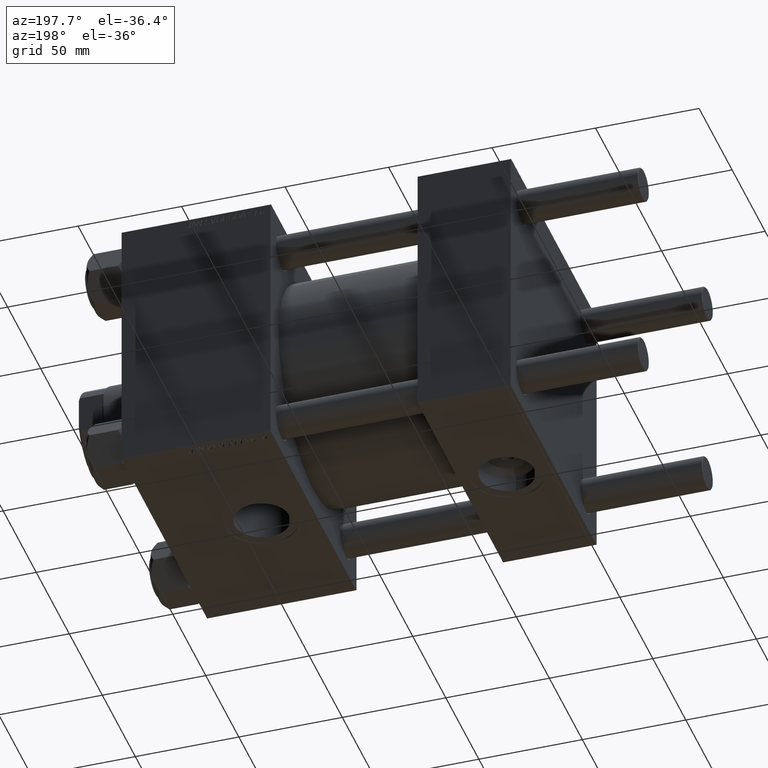
[diagram: clean part render]
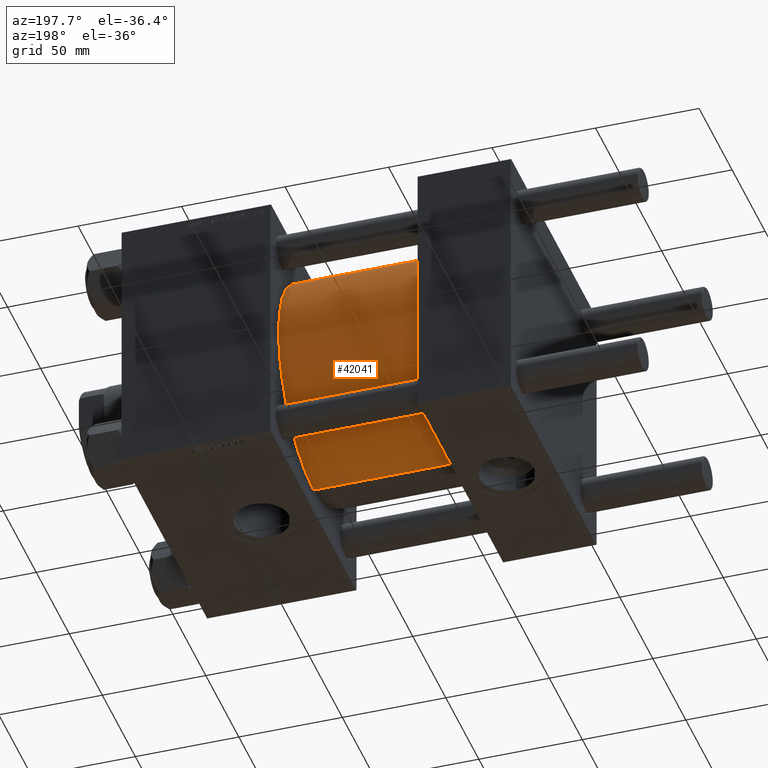
[diagram: same view with one face highlighted and labeled with its STEP entity id]
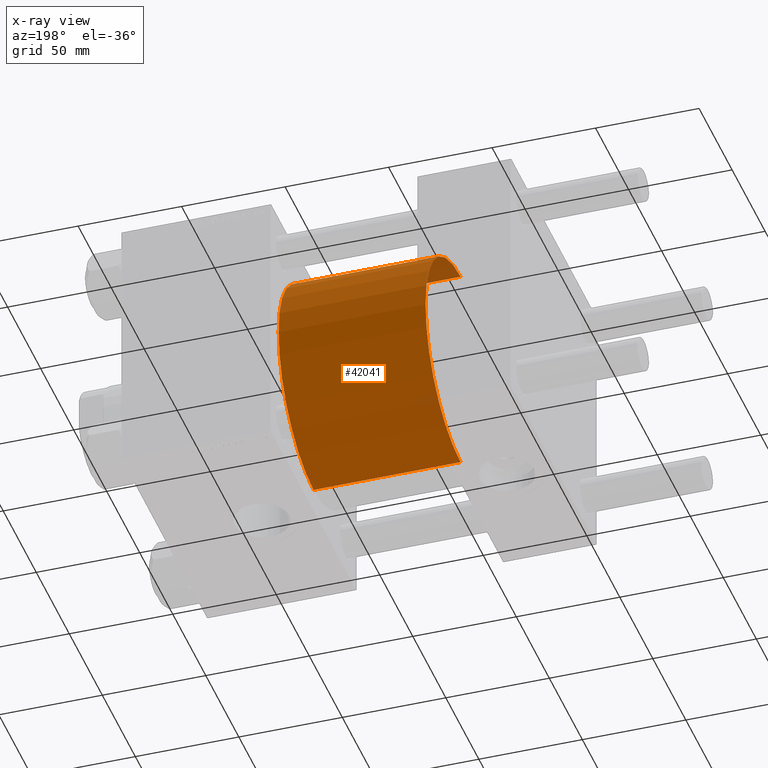
[diagram: x-ray of the same camera — body ghosted, the highlighted face saturated]
A machine part, auxiliary view. The second image highlights one B-rep face of the part: STEP entity #42041.
The next image is the same camera in x-ray: the body ghosted, the highlighted face saturated — about 2% of this face is hidden behind the body in this view.
In plain terms, the highlighted cylindrical surface (partial cylindrical patch) has radius 53 mm, axis along (-1, -0, -0).
Its self-contained STEP definition (entity closure, byte-faithful):
#1542 = LINE ( 'NONE', #39551, #46786 ) ;
#2780 = CARTESIAN_POINT ( 'NONE',  ( 115.9999999999999858, 0.000000000000000000, 53.00000000000000711 ) ) ;
#2874 = DIRECTION ( 'NONE',  ( 1.000000000000000000, 0.000000000000000000, 0.000000000000000000 ) ) ;
#5884 = AXIS2_PLACEMENT_3D ( 'NONE', #26891, #11350, #42468 ) ;
#6329 = VECTOR ( 'NONE', #30575, 1000.000000000000000 ) ;
#7062 = CARTESIAN_POINT ( 'NONE',  ( 45.00000000000000000, 0.000000000000000000, 53.00000000000000711 ) ) ;
#8949 = CIRCLE ( 'NONE', #9758, 53.00000000000000711 ) ;
#9585 = CARTESIAN_POINT ( 'NONE',  ( 115.9999999999999858, 6.490628035480973107E-15, -53.00000000000000711 ) ) ;
#9758 = AXIS2_PLACEMENT_3D ( 'NONE', #42148, #2874, #41390 ) ;
#9792 = VERTEX_POINT ( 'NONE', #16614 ) ;
#10048 = FACE_OUTER_BOUND ( 'NONE', #50366, .T. ) ;
#11350 = DIRECTION ( 'NONE',  ( 1.000000000000000000, -0.000000000000000000, 0.000000000000000000 ) ) ;
#13242 = CIRCLE ( 'NONE', #5884, 53.00000000000000711 ) ;
#13867 = DIRECTION ( 'NONE',  ( -1.000000000000000000, -0.000000000000000000, -0.000000000000000000 ) ) ;
#14479 = ORIENTED_EDGE ( 'NONE', *, *, #39506, .T. ) ;
#16585 = AXIS2_PLACEMENT_3D ( 'NONE', #25590, #13867, #25091 ) ;
#16614 = CARTESIAN_POINT ( 'NONE',  ( 45.00000000000000000, 6.490628035480973107E-15, -53.00000000000000711 ) ) ;
#17728 = CARTESIAN_POINT ( 'NONE',  ( 115.9999999999999858, 0.000000000000000000, 53.00000000000000711 ) ) ;
#19120 = ORIENTED_EDGE ( 'NONE', *, *, #30974, .F. ) ;
#21816 = VERTEX_POINT ( 'NONE', #7062 ) ;
#25091 = DIRECTION ( 'NONE',  ( 0.000000000000000000, 0.000000000000000000, 1.000000000000000000 ) ) ;
#25590 = CARTESIAN_POINT ( 'NONE',  ( 115.9999999999999858, 0.000000000000000000, 0.000000000000000000 ) ) ;
#26441 = EDGE_CURVE ( 'NONE', #45105, #21816, #41547, .T. ) ;
#26891 = CARTESIAN_POINT ( 'NONE',  ( 45.00000000000000000, 0.000000000000000000, 0.000000000000000000 ) ) ;
#28065 = VERTEX_POINT ( 'NONE', #9585 ) ;
#30575 = DIRECTION ( 'NONE',  ( -1.000000000000000000, -0.000000000000000000, -0.000000000000000000 ) ) ;
#30974 = EDGE_CURVE ( 'NONE', #28065, #45105, #8949, .T. ) ;
#33883 = ORIENTED_EDGE ( 'NONE', *, *, #26441, .F. ) ;
#34003 = ORIENTED_EDGE ( 'NONE', *, *, #43331, .T. ) ;
#39506 = EDGE_CURVE ( 'NONE', #9792, #21816, #13242, .T. ) ;
#39551 = CARTESIAN_POINT ( 'NONE',  ( 115.9999999999999858, 6.490628035480973107E-15, -53.00000000000000711 ) ) ;
#40312 = DIRECTION ( 'NONE',  ( -1.000000000000000000, -0.000000000000000000, -0.000000000000000000 ) ) ;
#41390 = DIRECTION ( 'NONE',  ( 0.000000000000000000, 0.000000000000000000, -1.000000000000000000 ) ) ;
#41547 = LINE ( 'NONE', #2780, #6329 ) ;
#42041 = ADVANCED_FACE ( 'NONE', ( #10048 ), #45246, .T. ) ;
#42148 = CARTESIAN_POINT ( 'NONE',  ( 115.9999999999999858, 0.000000000000000000, 0.000000000000000000 ) ) ;
#42468 = DIRECTION ( 'NONE',  ( 0.000000000000000000, 0.000000000000000000, 1.000000000000000000 ) ) ;
#43331 = EDGE_CURVE ( 'NONE', #28065, #9792, #1542, .T. ) ;
#45105 = VERTEX_POINT ( 'NONE', #17728 ) ;
#45246 = CYLINDRICAL_SURFACE ( 'NONE', #16585, 53.00000000000000711 ) ;
#46786 = VECTOR ( 'NONE', #40312, 1000.000000000000000 ) ;
#50366 = EDGE_LOOP ( 'NONE', ( #19120, #34003, #14479, #33883 ) ) ;